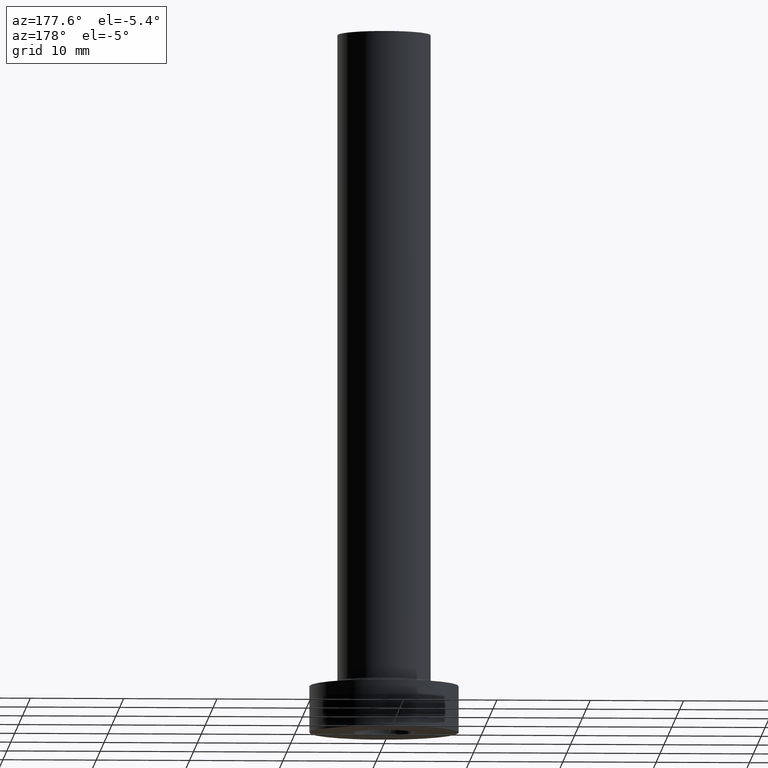
[diagram: clean part render]
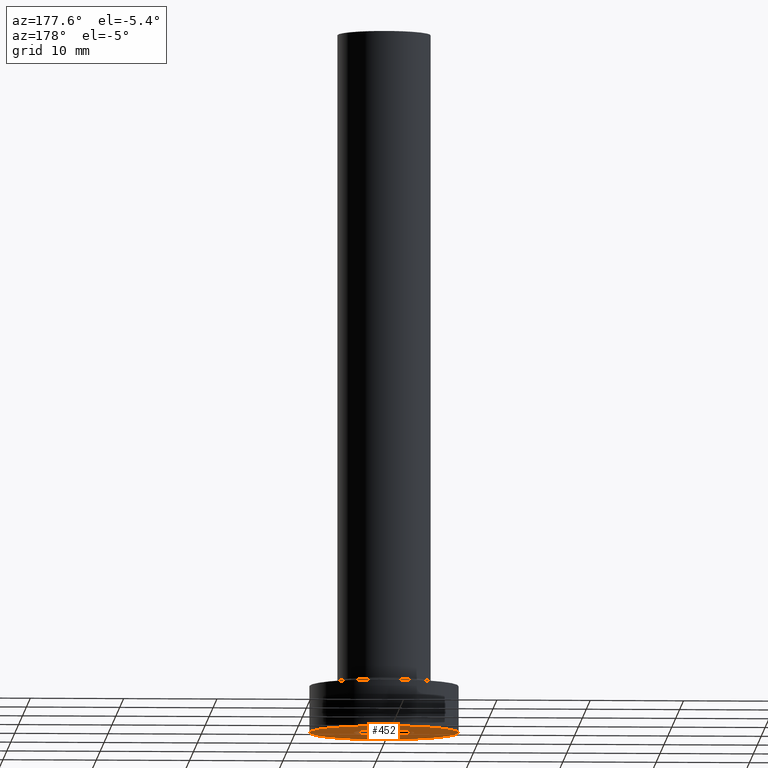
[diagram: same view with one face highlighted and labeled with its STEP entity id]
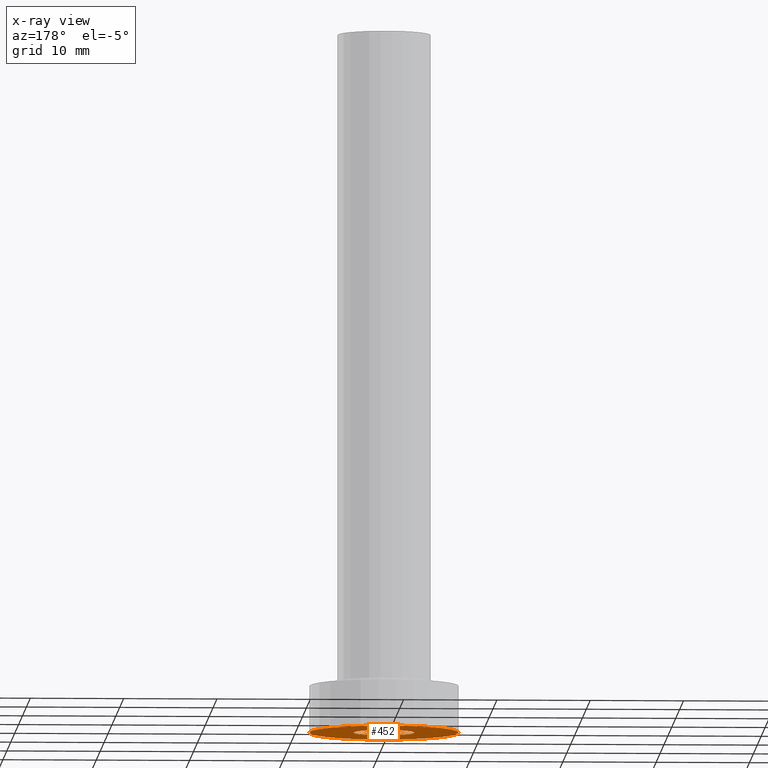
[diagram: x-ray of the same camera — body ghosted, the highlighted face saturated]
A machine part, auxiliary view. The second image highlights one B-rep face of the part: STEP entity #452.
The next image is the same camera in x-ray: the body ghosted, the highlighted face saturated — about 0% of this face is hidden behind the body in this view.
In plain terms, the highlighted planar face has unit normal (0, 0, 1).
Its self-contained STEP definition (entity closure, byte-faithful):
#3 = VERTEX_POINT ( 'NONE', #434 ) ;
#11 = CARTESIAN_POINT ( 'NONE',  ( 3.250000000000000444, 3.980102097228898231E-16, 0.000000000000000000 ) ) ;
#18 = VERTEX_POINT ( 'NONE', #426 ) ;
#20 = CIRCLE ( 'NONE', #171, 8.000000000000000000 ) ;
#29 = ORIENTED_EDGE ( 'NONE', *, *, #324, .F. ) ;
#40 = ORIENTED_EDGE ( 'NONE', *, *, #116, .F. ) ;
#50 = VERTEX_POINT ( 'NONE', #89 ) ;
#57 = DIRECTION ( 'NONE',  ( 1.000000000000000000, 0.000000000000000000, 0.000000000000000000 ) ) ;
#60 = DIRECTION ( 'NONE',  ( 1.000000000000000000, 0.000000000000000000, -0.000000000000000000 ) ) ;
#82 = VERTEX_POINT ( 'NONE', #11 ) ;
#89 = CARTESIAN_POINT ( 'NONE',  ( -3.250000000000000444, 0.000000000000000000, 0.000000000000000000 ) ) ;
#96 = CARTESIAN_POINT ( 'NONE',  ( 0.000000000000000000, 0.000000000000000000, 0.000000000000000000 ) ) ;
#101 = CIRCLE ( 'NONE', #356, 8.000000000000000000 ) ;
#105 = ORIENTED_EDGE ( 'NONE', *, *, #132, .F. ) ;
#110 = DIRECTION ( 'NONE',  ( 0.000000000000000000, 0.000000000000000000, 1.000000000000000000 ) ) ;
#113 = DIRECTION ( 'NONE',  ( 0.000000000000000000, 0.000000000000000000, 1.000000000000000000 ) ) ;
#116 = EDGE_CURVE ( 'NONE', #50, #82, #292, .T. ) ;
#120 = CIRCLE ( 'NONE', #417, 3.250000000000000444 ) ;
#127 = DIRECTION ( 'NONE',  ( -0.000000000000000000, -0.000000000000000000, -1.000000000000000000 ) ) ;
#132 = EDGE_CURVE ( 'NONE', #18, #3, #101, .T. ) ;
#138 = DIRECTION ( 'NONE',  ( 1.000000000000000000, 0.000000000000000000, 0.000000000000000000 ) ) ;
#146 = EDGE_LOOP ( 'NONE', ( #40, #180 ) ) ;
#147 = CARTESIAN_POINT ( 'NONE',  ( 0.000000000000000000, 0.000000000000000000, 0.000000000000000000 ) ) ;
#162 = FACE_OUTER_BOUND ( 'NONE', #163, .T. ) ;
#163 = EDGE_LOOP ( 'NONE', ( #29, #105 ) ) ;
#171 = AXIS2_PLACEMENT_3D ( 'NONE', #147, #113, #241 ) ;
#180 = ORIENTED_EDGE ( 'NONE', *, *, #338, .F. ) ;
#206 = AXIS2_PLACEMENT_3D ( 'NONE', #398, #332, #57 ) ;
#224 = FACE_BOUND ( 'NONE', #146, .T. ) ;
#226 = PLANE ( 'NONE',  #279 ) ;
#241 = DIRECTION ( 'NONE',  ( 1.000000000000000000, 0.000000000000000000, 0.000000000000000000 ) ) ;
#279 = AXIS2_PLACEMENT_3D ( 'NONE', #294, #364, #60 ) ;
#292 = CIRCLE ( 'NONE', #206, 3.250000000000000444 ) ;
#294 = CARTESIAN_POINT ( 'NONE',  ( 0.000000000000000000, 0.000000000000000000, 0.000000000000000000 ) ) ;
#324 = EDGE_CURVE ( 'NONE', #3, #18, #20, .T. ) ;
#332 = DIRECTION ( 'NONE',  ( -0.000000000000000000, -0.000000000000000000, -1.000000000000000000 ) ) ;
#338 = EDGE_CURVE ( 'NONE', #82, #50, #120, .T. ) ;
#356 = AXIS2_PLACEMENT_3D ( 'NONE', #416, #110, #138 ) ;
#364 = DIRECTION ( 'NONE',  ( 0.000000000000000000, 0.000000000000000000, 1.000000000000000000 ) ) ;
#365 = DIRECTION ( 'NONE',  ( 1.000000000000000000, 0.000000000000000000, 0.000000000000000000 ) ) ;
#398 = CARTESIAN_POINT ( 'NONE',  ( 0.000000000000000000, 0.000000000000000000, 0.000000000000000000 ) ) ;
#416 = CARTESIAN_POINT ( 'NONE',  ( 0.000000000000000000, 0.000000000000000000, 0.000000000000000000 ) ) ;
#417 = AXIS2_PLACEMENT_3D ( 'NONE', #96, #127, #365 ) ;
#426 = CARTESIAN_POINT ( 'NONE',  ( 8.000000000000000000, 9.797174393178825657E-16, 0.000000000000000000 ) ) ;
#434 = CARTESIAN_POINT ( 'NONE',  ( -8.000000000000000000, 0.000000000000000000, 0.000000000000000000 ) ) ;
#452 = ADVANCED_FACE ( 'NONE', ( #224, #162 ), #226, .F. ) ;